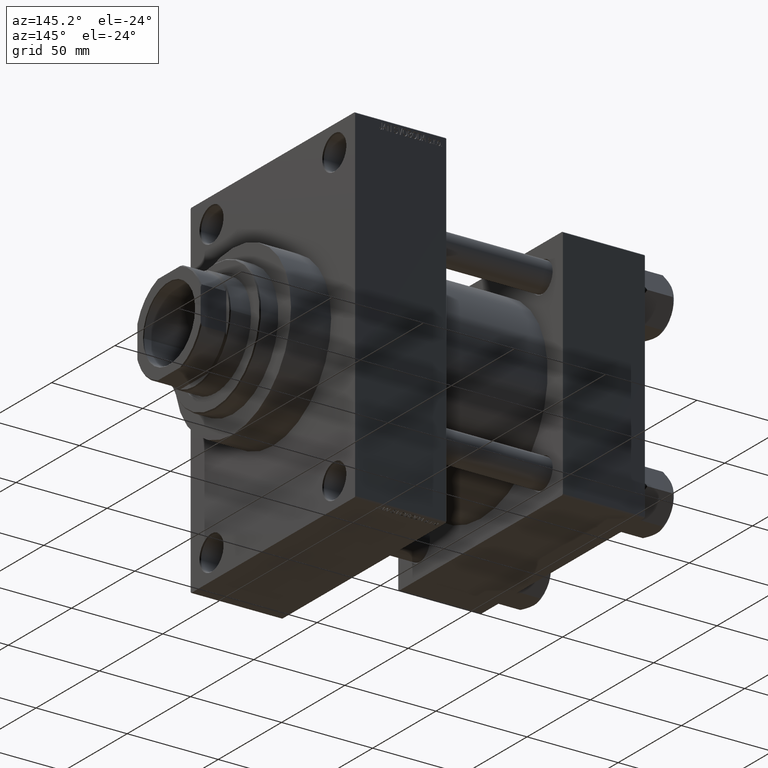
[diagram: clean part render]
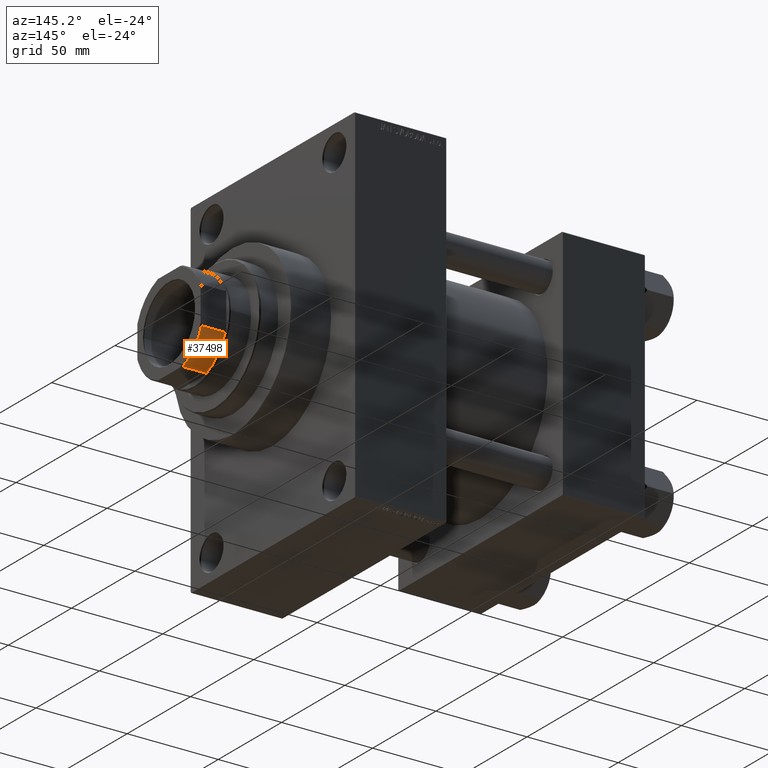
[diagram: same view with one face highlighted and labeled with its STEP entity id]
A machine part, auxiliary view. The second image highlights one B-rep face of the part: STEP entity #37498.
In plain terms, the highlighted cylindrical surface (partial cylindrical patch) has radius 27 mm, axis along (1, 0, 0).
Its self-contained STEP definition (entity closure, byte-faithful):
#901 = CARTESIAN_POINT ( 'NONE',  ( -10.19803902718555300, 25.00000000000000000, 157.5000000000000568 ) ) ;
#2154 = CARTESIAN_POINT ( 'NONE',  ( -25.00000000000000000, 10.19803902718555655, -0.001000000000001000089 ) ) ;
#3108 = DIRECTION ( 'NONE',  ( -0.000000000000000000, -0.000000000000000000, 1.000000000000000000 ) ) ;
#3332 = CARTESIAN_POINT ( 'NONE',  ( 0.000000000000000000, 0.000000000000000000, -0.001000000000001000089 ) ) ;
#5713 = EDGE_LOOP ( 'NONE', ( #6457, #22592, #24534, #17308 ) ) ;
#6258 = EDGE_CURVE ( 'NONE', #8064, #12671, #20519, .T. ) ;
#6457 = ORIENTED_EDGE ( 'NONE', *, *, #13624, .T. ) ;
#6881 = CARTESIAN_POINT ( 'NONE',  ( -25.00000000000000000, 10.19803902718555655, 170.5000000000000284 ) ) ;
#6915 = DIRECTION ( 'NONE',  ( -0.000000000000000000, -0.000000000000000000, 1.000000000000000000 ) ) ;
#8064 = VERTEX_POINT ( 'NONE', #901 ) ;
#8740 = CARTESIAN_POINT ( 'NONE',  ( -25.00000000000000000, 10.19803902718555300, 157.5000000000000568 ) ) ;
#9280 = DIRECTION ( 'NONE',  ( -1.000000000000000000, 1.776356839400250465E-15, 0.000000000000000000 ) ) ;
#10938 = DIRECTION ( 'NONE',  ( 1.000000000000000000, 0.000000000000000000, 0.000000000000000000 ) ) ;
#12671 = VERTEX_POINT ( 'NONE', #8740 ) ;
#13624 = EDGE_CURVE ( 'NONE', #12671, #35325, #42726, .T. ) ;
#14442 = FACE_OUTER_BOUND ( 'NONE', #5713, .T. ) ;
#16575 = CARTESIAN_POINT ( 'NONE',  ( -10.19803902718555655, 25.00000000000000000, 170.5000000000000284 ) ) ;
#17308 = ORIENTED_EDGE ( 'NONE', *, *, #6258, .T. ) ;
#18429 = DIRECTION ( 'NONE',  ( -0.000000000000000000, -0.000000000000000000, -1.000000000000000000 ) ) ;
#18795 = CIRCLE ( 'NONE', #45779, 26.99999999999999645 ) ;
#20519 = CIRCLE ( 'NONE', #34425, 26.99999999999999645 ) ;
#21345 = DIRECTION ( 'NONE',  ( -0.000000000000000000, -0.000000000000000000, 1.000000000000000000 ) ) ;
#22592 = ORIENTED_EDGE ( 'NONE', *, *, #47761, .T. ) ;
#24534 = ORIENTED_EDGE ( 'NONE', *, *, #38826, .F. ) ;
#25288 = LINE ( 'NONE', #43385, #41670 ) ;
#28727 = DIRECTION ( 'NONE',  ( -0.000000000000000000, -0.000000000000000000, 1.000000000000000000 ) ) ;
#34425 = AXIS2_PLACEMENT_3D ( 'NONE', #42364, #21345, #9280 ) ;
#35325 = VERTEX_POINT ( 'NONE', #6881 ) ;
#36441 = CYLINDRICAL_SURFACE ( 'NONE', #42382, 26.99999999999999645 ) ;
#37498 = ADVANCED_FACE ( 'NONE', ( #14442 ), #36441, .T. ) ;
#38826 = EDGE_CURVE ( 'NONE', #8064, #44183, #25288, .T. ) ;
#40305 = DIRECTION ( 'NONE',  ( 1.000000000000000000, 0.000000000000000000, 0.000000000000000000 ) ) ;
#41670 = VECTOR ( 'NONE', #6915, 1000.000000000000000 ) ;
#42364 = CARTESIAN_POINT ( 'NONE',  ( 0.000000000000000000, 0.000000000000000000, 157.5000000000000568 ) ) ;
#42382 = AXIS2_PLACEMENT_3D ( 'NONE', #3332, #28727, #40305 ) ;
#42726 = LINE ( 'NONE', #2154, #43129 ) ;
#43129 = VECTOR ( 'NONE', #3108, 1000.000000000000000 ) ;
#43385 = CARTESIAN_POINT ( 'NONE',  ( -10.19803902718555655, 25.00000000000000000, -0.001000000000001000089 ) ) ;
#44183 = VERTEX_POINT ( 'NONE', #16575 ) ;
#45779 = AXIS2_PLACEMENT_3D ( 'NONE', #47397, #18429, #10938 ) ;
#47397 = CARTESIAN_POINT ( 'NONE',  ( 0.000000000000000000, 0.000000000000000000, 170.5000000000000284 ) ) ;
#47761 = EDGE_CURVE ( 'NONE', #35325, #44183, #18795, .T. ) ;